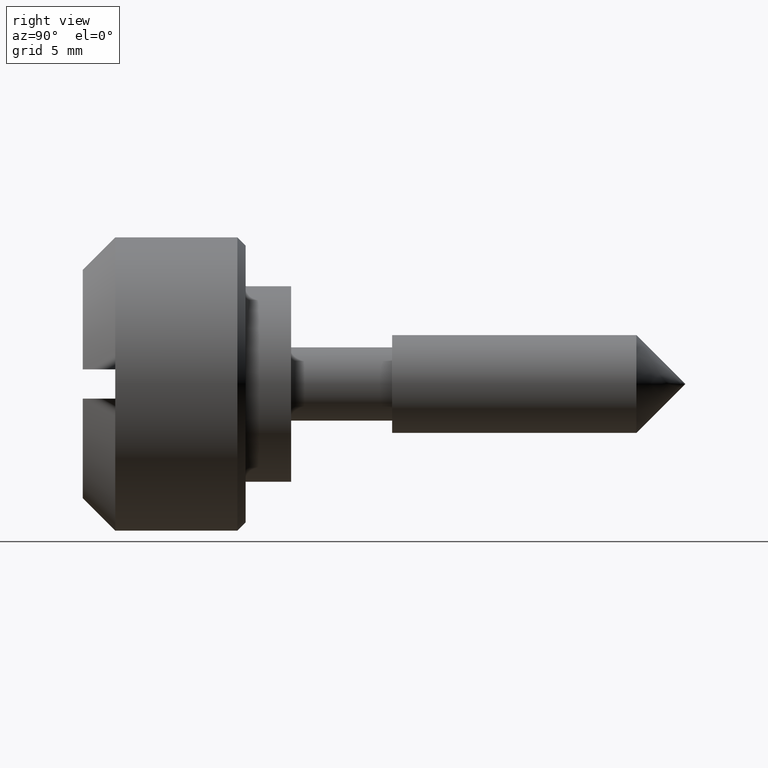
[diagram: clean part render]
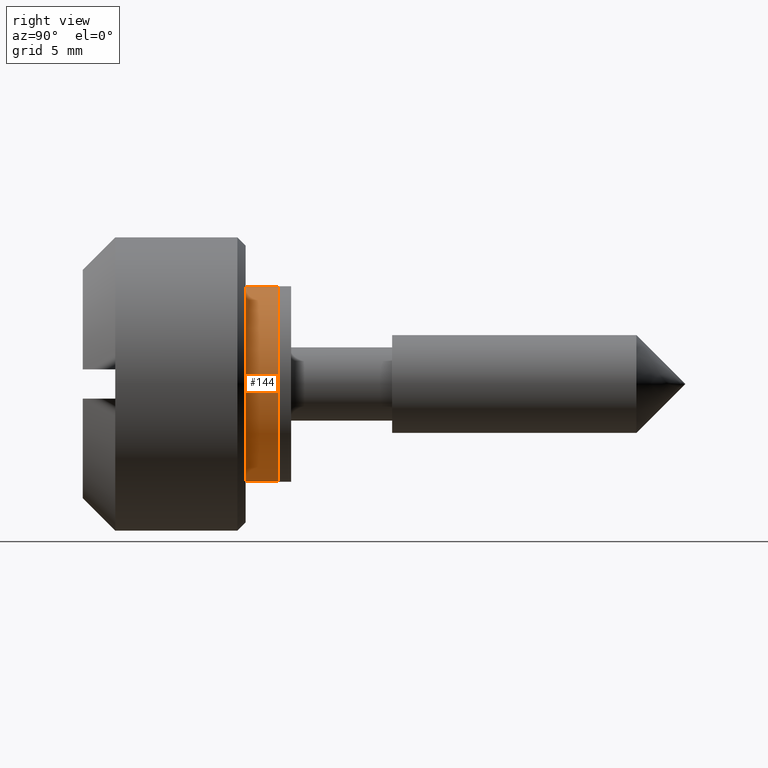
[diagram: same view with one face highlighted and labeled with its STEP entity id]
A machine part, right view. The second image highlights one B-rep face of the part: STEP entity #144.
In plain terms, the highlighted cylindrical surface (partial cylindrical patch) has radius 6 mm, axis along (0, -1, -0).
Its self-contained STEP definition (entity closure, byte-faithful):
#144=ADVANCED_FACE('',(#480),#479,.T.);
#479=CYLINDRICAL_SURFACE('',#759,6.00000000000E+00);
#480=FACE_OUTER_BOUND('',#760,.T.);
#756=CARTESIAN_POINT('',(-1.00000000000E+03,0.00000000000E+00,0.00000000000E+00));
#757=DIRECTION('',(-1.00000000000E+00,-0.00000000000E+00,-0.00000000000E+00));
#758=DIRECTION('',(0.00000000000E+00,1.22464679915E-16,-1.00000000000E+00));
#759=AXIS2_PLACEMENT_3D('',#756,#757,#758);
#760=EDGE_LOOP('',(#992,#993,#994,#995));
#992=ORIENTED_EDGE('',*,*,#1100,.F.);
#993=ORIENTED_EDGE('',*,*,#1118,.F.);
#994=ORIENTED_EDGE('',*,*,#1094,.F.);
#995=ORIENTED_EDGE('',*,*,#1119,.T.);
#1094=EDGE_CURVE('',#1558,#1559,#1560,.T.);
#1100=EDGE_CURVE('',#1600,#1601,#1602,.T.);
#1118=EDGE_CURVE('',#1559,#1600,#1720,.T.);
#1119=EDGE_CURVE('',#1558,#1601,#1726,.T.);
#1558=VERTEX_POINT('',#2055);
#1559=VERTEX_POINT('',#2056);
#1560=CIRCLE('',#2060,6.00000000000E+00);
#1600=VERTEX_POINT('',#2085);
#1601=VERTEX_POINT('',#2086);
#1602=CIRCLE('',#2090,6.00000000000E+00);
#1720=(BOUNDED_CURVE() B_SPLINE_CURVE(1,(#2161,#2162),.UNSPECIFIED.,.F.,.F.) B_SPLINE_CURVE_WITH_KNOTS((2,2),(8.33333134656E-02,9.16666653270E-01),.UNSPECIFIED.) CURVE() GEOMETRIC_REPRESENTATION_ITEM() RATIONAL_B_SPLINE_CURVE((1.00000000000E+00,1.00000000000E+00)) REPRESENTATION_ITEM('') );
#1726=(BOUNDED_CURVE() B_SPLINE_CURVE(1,(#2163,#2164),.UNSPECIFIED.,.F.,.F.) B_SPLINE_CURVE_WITH_KNOTS((2,2),(8.33333333333E-02,9.16666666667E-01),.UNSPECIFIED.) CURVE() GEOMETRIC_REPRESENTATION_ITEM() RATIONAL_B_SPLINE_CURVE((7.50000000000E-01,7.50000000000E-01)) REPRESENTATION_ITEM('') );
#2055=CARTESIAN_POINT('',(0.00000000000E+00,0.00000000000E+00,6.00000000000E+00));
#2056=CARTESIAN_POINT('',(0.00000000000E+00,1.18423789293E-15,-6.00000000000E+00));
#2057=CARTESIAN_POINT('',(0.00000000000E+00,0.00000000000E+00,0.00000000000E+00));
#2058=DIRECTION('',(1.00000000000E+00,0.00000000000E+00,-0.00000000000E+00));
#2059=DIRECTION('',(0.00000000000E+00,-1.22460635382E-16,1.00000000000E+00));
#2060=AXIS2_PLACEMENT_3D('',#2057,#2058,#2059);
#2085=CARTESIAN_POINT('',(-2.00000000000E+00,0.00000000000E+00,-6.00000000000E+00));
#2086=CARTESIAN_POINT('',(-2.00000000000E+00,1.18423789293E-15,6.00000000000E+00));
#2087=CARTESIAN_POINT('',(-2.00000000000E+00,0.00000000000E+00,0.00000000000E+00));
#2088=DIRECTION('',(-1.00000000000E+00,0.00000000000E+00,-0.00000000000E+00));
#2089=DIRECTION('',(0.00000000000E+00,-1.22460635382E-16,-1.00000000000E+00));
#2090=AXIS2_PLACEMENT_3D('',#2087,#2088,#2089);
#2161=CARTESIAN_POINT('',(4.76825442464E-08,7.34788079488E-16,-6.00000000000E+00));
#2162=CARTESIAN_POINT('',(-1.99999996785E+00,7.34788079488E-16,-6.00000000000E+00));
#2163=CARTESIAN_POINT('',(3.70074341542E-17,0.00000000000E+00,6.00000000000E+00));
#2164=CARTESIAN_POINT('',(-2.00000000000E+00,0.00000000000E+00,6.00000000000E+00));